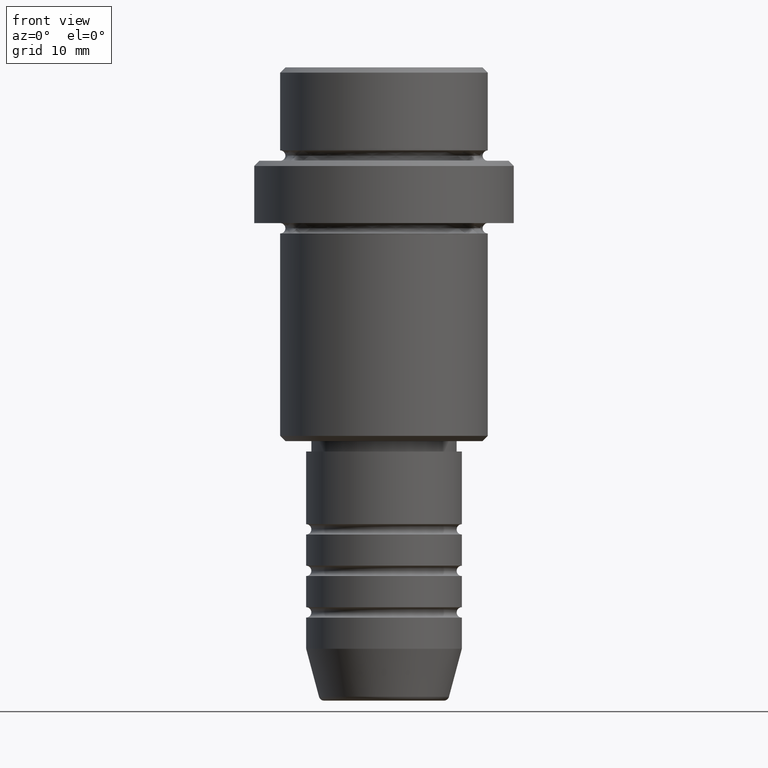
[diagram: clean part render]
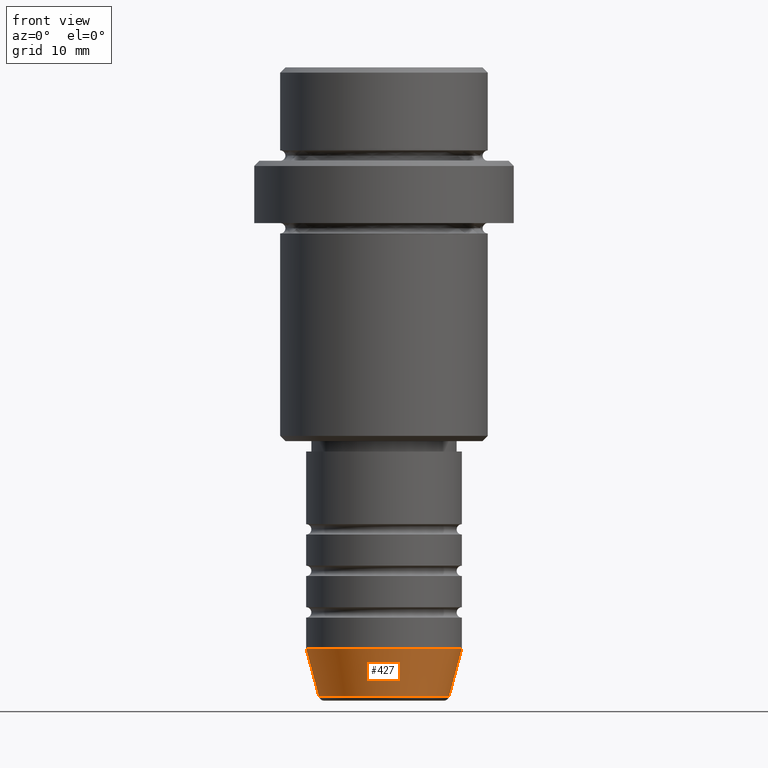
[diagram: same view with one face highlighted and labeled with its STEP entity id]
A machine part, front view. The second image highlights one B-rep face of the part: STEP entity #427.
In plain terms, the highlighted conical surface has half-angle 15 deg.
Its self-contained STEP definition (entity closure, byte-faithful):
#7 = EDGE_CURVE ( 'NONE', #1357, #640, #99, .T. ) ;
#98 = EDGE_CURVE ( 'NONE', #1381, #640, #806, .T. ) ;
#99 = CIRCLE ( 'NONE', #778, 7.500000000000000000 ) ;
#115 = VERTEX_POINT ( 'NONE', #142 ) ;
#142 = CARTESIAN_POINT ( 'NONE',  ( -6.259553456999436882, 8.425296549405627514E-16, -60.62940952255126348 ) ) ;
#196 = CARTESIAN_POINT ( 'NONE',  ( 0.000000000000000000, 0.000000000000000000, -56.00000000000000000 ) ) ;
#282 = CARTESIAN_POINT ( 'NONE',  ( -7.500000000000000000, 9.184850993605147944E-16, -56.00000000000000000 ) ) ;
#371 = VECTOR ( 'NONE', #871, 1000.000000000000000 ) ;
#393 = AXIS2_PLACEMENT_3D ( 'NONE', #1172, #643, #1393 ) ;
#427 = ADVANCED_FACE ( 'NONE', ( #1195 ), #1412, .T. ) ;
#464 = EDGE_CURVE ( 'NONE', #115, #1381, #581, .T. ) ;
#500 = CARTESIAN_POINT ( 'NONE',  ( -7.500000000000000000, 9.184850993605147944E-16, -56.00000000000000000 ) ) ;
#502 = AXIS2_PLACEMENT_3D ( 'NONE', #196, #1076, #1305 ) ;
#574 = DIRECTION ( 'NONE',  ( 0.2588190451025213501, 0.000000000000000000, 0.9659258262890680902 ) ) ;
#581 = CIRCLE ( 'NONE', #393, 6.259553456999436882 ) ;
#640 = VERTEX_POINT ( 'NONE', #810 ) ;
#643 = DIRECTION ( 'NONE',  ( -0.000000000000000000, -0.000000000000000000, 1.000000000000000000 ) ) ;
#671 = DIRECTION ( 'NONE',  ( 1.000000000000000000, 0.000000000000000000, 0.000000000000000000 ) ) ;
#778 = AXIS2_PLACEMENT_3D ( 'NONE', #878, #1307, #671 ) ;
#806 = LINE ( 'NONE', #1331, #1338 ) ;
#810 = CARTESIAN_POINT ( 'NONE',  ( 7.500000000000000000, 0.000000000000000000, -56.00000000000000000 ) ) ;
#871 = DIRECTION ( 'NONE',  ( -0.2588190451025213501, 3.169619151431772337E-17, 0.9659258262890680902 ) ) ;
#878 = CARTESIAN_POINT ( 'NONE',  ( 0.000000000000000000, 0.000000000000000000, -56.00000000000000000 ) ) ;
#992 = EDGE_LOOP ( 'NONE', ( #1021, #1312, #1187, #1291 ) ) ;
#1021 = ORIENTED_EDGE ( 'NONE', *, *, #1259, .F. ) ;
#1076 = DIRECTION ( 'NONE',  ( -0.000000000000000000, -0.000000000000000000, 1.000000000000000000 ) ) ;
#1172 = CARTESIAN_POINT ( 'NONE',  ( 0.000000000000000000, 0.000000000000000000, -60.62940952255126348 ) ) ;
#1187 = ORIENTED_EDGE ( 'NONE', *, *, #98, .T. ) ;
#1195 = FACE_OUTER_BOUND ( 'NONE', #992, .T. ) ;
#1244 = LINE ( 'NONE', #500, #371 ) ;
#1259 = EDGE_CURVE ( 'NONE', #115, #1357, #1244, .T. ) ;
#1291 = ORIENTED_EDGE ( 'NONE', *, *, #7, .F. ) ;
#1305 = DIRECTION ( 'NONE',  ( 1.000000000000000000, 0.000000000000000000, 0.000000000000000000 ) ) ;
#1307 = DIRECTION ( 'NONE',  ( -0.000000000000000000, -0.000000000000000000, 1.000000000000000000 ) ) ;
#1312 = ORIENTED_EDGE ( 'NONE', *, *, #464, .T. ) ;
#1331 = CARTESIAN_POINT ( 'NONE',  ( 7.500000000000000000, 0.000000000000000000, -56.00000000000000000 ) ) ;
#1338 = VECTOR ( 'NONE', #574, 1000.000000000000000 ) ;
#1357 = VERTEX_POINT ( 'NONE', #282 ) ;
#1381 = VERTEX_POINT ( 'NONE', #1410 ) ;
#1393 = DIRECTION ( 'NONE',  ( 1.000000000000000000, 0.000000000000000000, 0.000000000000000000 ) ) ;
#1410 = CARTESIAN_POINT ( 'NONE',  ( 6.259553456999436882, 0.000000000000000000, -60.62940952255126348 ) ) ;
#1412 = CONICAL_SURFACE ( 'NONE', #502, 7.500000000000000000, 0.2617993877991500740 ) ;